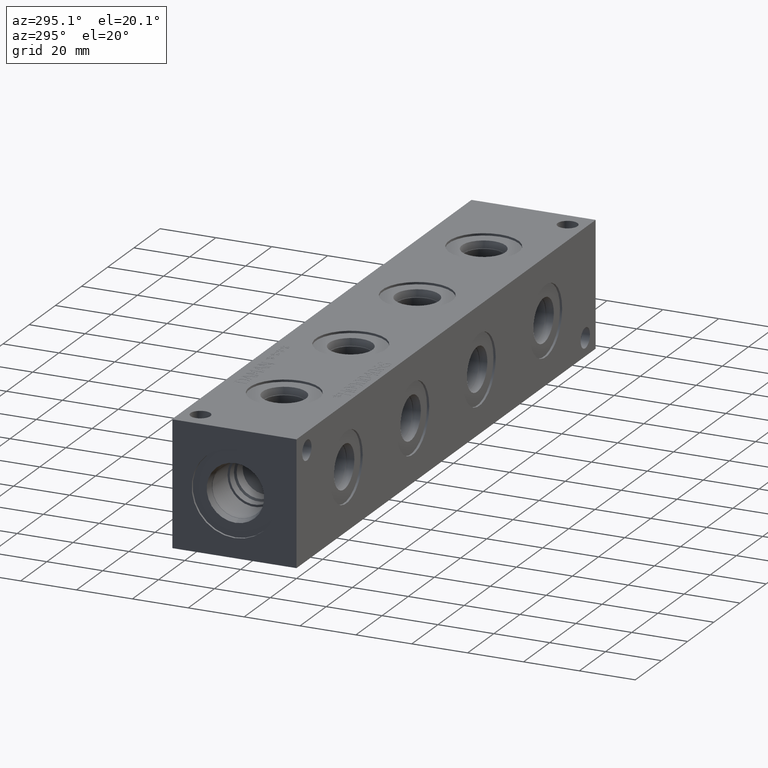
[diagram: clean part render]
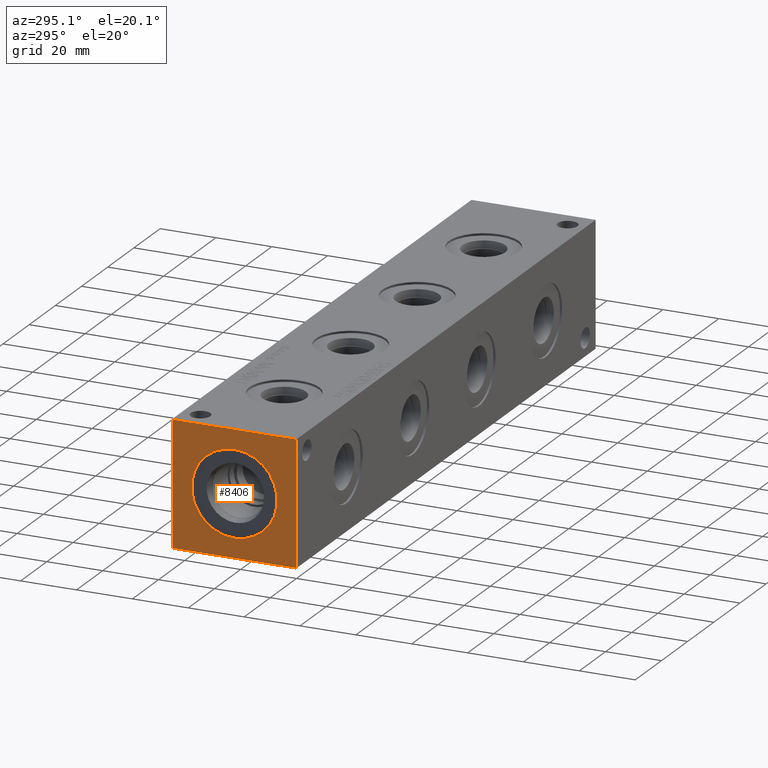
[diagram: same view with one face highlighted and labeled with its STEP entity id]
A machine part, auxiliary view. The second image highlights one B-rep face of the part: STEP entity #8406.
In plain terms, the highlighted planar face has unit normal (-1, 0, 0).
Its self-contained STEP definition (entity closure, byte-faithful):
#317=CIRCLE('',#8949,15.3162);
#318=CIRCLE('',#8950,15.3162);
#382=FACE_BOUND('',#1669,.T.);
#1175=FACE_OUTER_BOUND('',#1668,.T.);
#1668=EDGE_LOOP('',(#7396,#7397,#7398,#7399));
#1669=EDGE_LOOP('',(#7400,#7401));
#1947=LINE('',#13047,#2668);
#2399=LINE('',#14712,#3120);
#2400=LINE('',#14713,#3121);
#2401=LINE('',#14714,#3122);
#2668=VECTOR('',#9358,10.);
#3120=VECTOR('',#10760,10.);
#3121=VECTOR('',#10761,10.);
#3122=VECTOR('',#10762,10.);
#3436=VERTEX_POINT('',#13040);
#3439=VERTEX_POINT('',#13045);
#3900=VERTEX_POINT('',#14681);
#3901=VERTEX_POINT('',#14682);
#3910=VERTEX_POINT('',#14710);
#3911=VERTEX_POINT('',#14711);
#4379=EDGE_CURVE('',#3439,#3436,#1947,.T.);
#5067=EDGE_CURVE('',#3900,#3901,#317,.T.);
#5068=EDGE_CURVE('',#3901,#3900,#318,.T.);
#5081=EDGE_CURVE('',#3910,#3911,#2399,.T.);
#5082=EDGE_CURVE('',#3911,#3436,#2400,.T.);
#5083=EDGE_CURVE('',#3910,#3439,#2401,.T.);
#7396=ORIENTED_EDGE('',*,*,#5081,.T.);
#7397=ORIENTED_EDGE('',*,*,#5082,.T.);
#7398=ORIENTED_EDGE('',*,*,#4379,.F.);
#7399=ORIENTED_EDGE('',*,*,#5083,.F.);
#7400=ORIENTED_EDGE('',*,*,#5067,.T.);
#7401=ORIENTED_EDGE('',*,*,#5068,.T.);
#7663=PLANE('',#8963);
#8406=ADVANCED_FACE('',(#1175,#382),#7663,.T.);
#8949=AXIS2_PLACEMENT_3D('',#14683,#10726,#10727);
#8950=AXIS2_PLACEMENT_3D('',#14684,#10728,#10729);
#8963=AXIS2_PLACEMENT_3D('',#14709,#10758,#10759);
#9358=DIRECTION('',(0.,-1.,0.));
#10726=DIRECTION('center_axis',(1.,0.,0.));
#10727=DIRECTION('ref_axis',(0.,0.,1.));
#10728=DIRECTION('center_axis',(1.,0.,0.));
#10729=DIRECTION('ref_axis',(0.,0.,1.));
#10758=DIRECTION('center_axis',(-1.,0.,0.));
#10759=DIRECTION('ref_axis',(0.,-1.,0.));
#10760=DIRECTION('',(0.,-1.,0.));
#10761=DIRECTION('',(0.,0.,1.));
#10762=DIRECTION('',(0.,0.,1.));
#13040=CARTESIAN_POINT('',(0.,0.,44.45));
#13045=CARTESIAN_POINT('',(0.,44.45,44.45));
#13047=CARTESIAN_POINT('',(0.,44.45,44.45));
#14681=CARTESIAN_POINT('',(0.,22.225,37.5412));
#14682=CARTESIAN_POINT('',(0.,22.225,6.9088));
#14683=CARTESIAN_POINT('Origin',(0.,22.225,22.225));
#14684=CARTESIAN_POINT('Origin',(0.,22.225,22.225));
#14709=CARTESIAN_POINT('Origin',(0.,44.45,0.));
#14710=CARTESIAN_POINT('',(0.,44.45,0.));
#14711=CARTESIAN_POINT('',(0.,0.,0.));
#14712=CARTESIAN_POINT('',(0.,44.45,0.));
#14713=CARTESIAN_POINT('',(0.,0.,0.));
#14714=CARTESIAN_POINT('',(0.,44.45,0.));